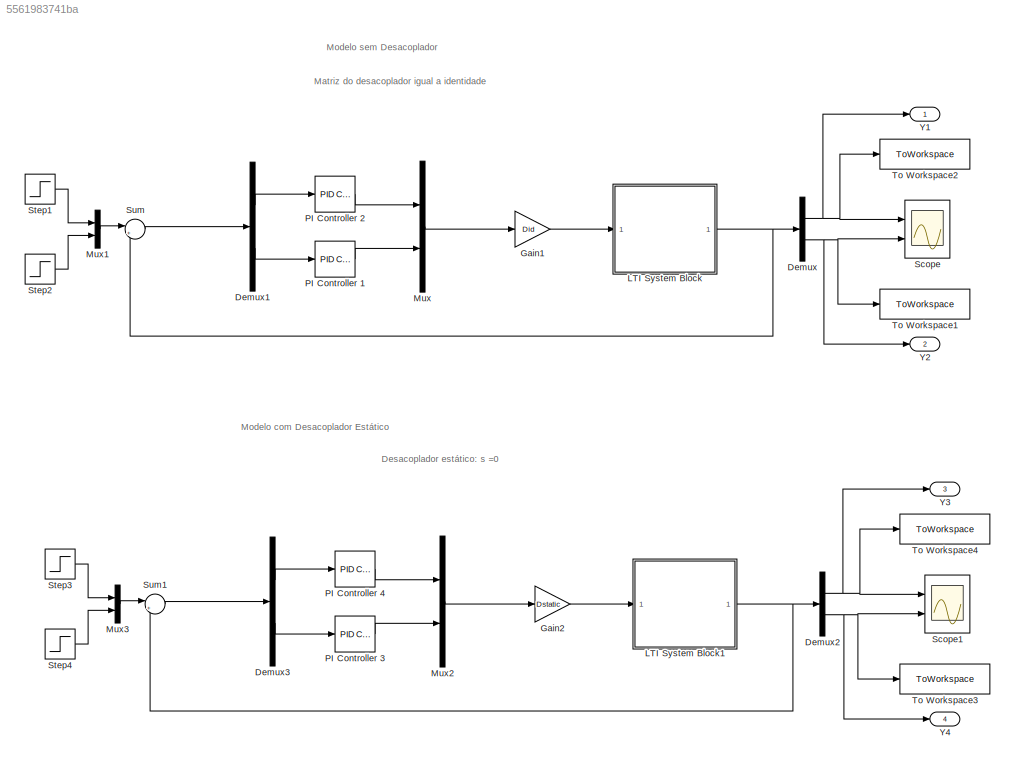
MODEL slx_5561983741ba
KIND model
CONFIG AbsTol = auto
CONFIG EnableMultiTasking = off
CONFIG FixedStep = auto
CONFIG MaxStep = auto
CONFIG MinStep = auto
CONFIG RelTol = 1e-3
CONFIG SampleTimeConstraint = Unconstrained
CONFIG SolverName = ode45
CONFIG StartTime = 0.0
CONFIG StopTime = 10000
WORKSPACE source: mxarray member
WORKSPACE Gm: object (value not decoded)
BLOCK [Demux] Demux
  Outputs = 2
  Ports = [1, 2]
BLOCK [Demux] Demux1
  Outputs = 2
  Ports = [1, 2]
BLOCK [Demux] Demux2
  Outputs = 2
  Ports = [1, 2]
BLOCK [Demux] Demux3
  Outputs = 2
  Ports = [1, 2]
BLOCK [Gain] Gain1
  Gain = Did
  Multiplication = Matrix(K*u)
BLOCK [Gain] Gain2
  Gain = Dstatic
  Multiplication = Matrix(K*u)
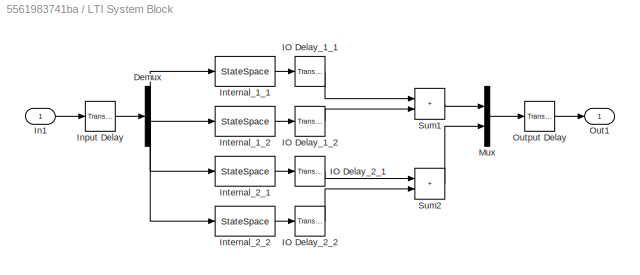
BLOCK [SubSystem] LTI System Block
  AncestorBlock = cstblocks/LTI System
  BlockChoice = CSS
  Ports = [1, 1]
  RequestExecContextInheritance = off
BLOCK [Demux] LTI System Block/Demux
  Outputs = 2
  Ports = [1, 2]
BLOCK [Reference] LTI System Block/IO Delay_1_1  REF=cstextras/Transport Delay  (lib defined in mdl_a5737024c95e)
(masked)
  Ports = [1, 1]
  SourceBlock = cstextras/Transport Delay\n(masked)
  SourceProductBaseCode = CT
  SourceType = Transport Delay (masked)
BLOCK [Reference] LTI System Block/IO Delay_1_2  REF=cstextras/Transport Delay  (lib defined in mdl_a5737024c95e)
(masked)
  Ports = [1, 1]
  SourceBlock = cstextras/Transport Delay\n(masked)
  SourceProductBaseCode = CT
  SourceType = Transport Delay (masked)
BLOCK [Reference] LTI System Block/IO Delay_2_1  REF=cstextras/Transport Delay  (lib defined in mdl_a5737024c95e)
(masked)
  Ports = [1, 1]
  SourceBlock = cstextras/Transport Delay\n(masked)
  SourceProductBaseCode = CT
  SourceType = Transport Delay (masked)
BLOCK [Reference] LTI System Block/IO Delay_2_2  REF=cstextras/Transport Delay  (lib defined in mdl_a5737024c95e)
(masked)
  Ports = [1, 1]
  SourceBlock = cstextras/Transport Delay\n(masked)
  SourceProductBaseCode = CT
  SourceType = Transport Delay (masked)
BLOCK [Inport] LTI System Block/In1
BLOCK [Reference] LTI System Block/Input Delay  REF=cstextras/Transport Delay  (lib defined in mdl_a5737024c95e)
(masked)
  Ports = [1, 1]
  SourceBlock = cstextras/Transport Delay\n(masked)
  SourceProductBaseCode = CT
  SourceType = Transport Delay (masked)
BLOCK [StateSpace] LTI System Block/Internal_1_1
  A = D(1,1).a
  B = D(1,1).b
  C = D(1,1).c
  D = D(1,1).d
  Ports = [1, 1]
BLOCK [StateSpace] LTI System Block/Internal_1_2
  A = D(1,2).a
  B = D(1,2).b
  C = D(1,2).c
  D = D(1,2).d
  Ports = [1, 1]
BLOCK [StateSpace] LTI System Block/Internal_2_1
  A = D(2,1).a
  B = D(2,1).b
  C = D(2,1).c
  D = D(2,1).d
  Ports = [1, 1]
BLOCK [StateSpace] LTI System Block/Internal_2_2
  A = D(2,2).a
  B = D(2,2).b
  C = D(2,2).c
  D = D(2,2).d
  Ports = [1, 1]
BLOCK [Mux] LTI System Block/Mux
  Inputs = 2
  Ports = [2, 1]
BLOCK [Outport] LTI System Block/Out1
  InitialOutput = 0
  VectorParamsAs1DForOutWhenUnconnected = off
BLOCK [Reference] LTI System Block/Output Delay  REF=cstextras/Transport Delay  (lib defined in mdl_a5737024c95e)
(masked)
  Ports = [1, 1]
  SourceBlock = cstextras/Transport Delay\n(masked)
  SourceProductBaseCode = CT
  SourceType = Transport Delay (masked)
BLOCK [Sum] LTI System Block/Sum1
  IconShape = rectangular
  Ports = [2, 1]
BLOCK [Sum] LTI System Block/Sum2
  IconShape = rectangular
  Ports = [2, 1]
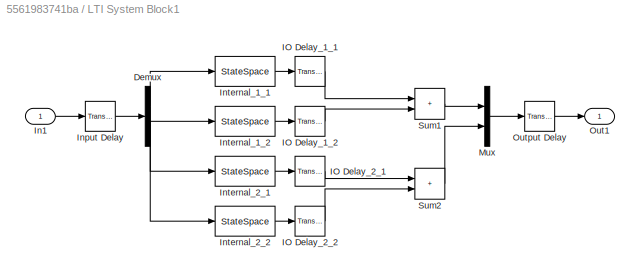
BLOCK [SubSystem] LTI System Block1
  AncestorBlock = cstblocks/LTI System
  BlockChoice = CSS
  Ports = [1, 1]
  RequestExecContextInheritance = off
BLOCK [Demux] LTI System Block1/Demux
  Outputs = 2
  Ports = [1, 2]
BLOCK [Reference] LTI System Block1/IO Delay_1_1  REF=cstextras/Transport Delay  (lib defined in mdl_a5737024c95e)
(masked)
  Ports = [1, 1]
  SourceBlock = cstextras/Transport Delay\n(masked)
  SourceProductBaseCode = CT
  SourceType = Transport Delay (masked)
BLOCK [Reference] LTI System Block1/IO Delay_1_2  REF=cstextras/Transport Delay  (lib defined in mdl_a5737024c95e)
(masked)
  Ports = [1, 1]
  SourceBlock = cstextras/Transport Delay\n(masked)
  SourceProductBaseCode = CT
  SourceType = Transport Delay (masked)
BLOCK [Reference] LTI System Block1/IO Delay_2_1  REF=cstextras/Transport Delay  (lib defined in mdl_a5737024c95e)
(masked)
  Ports = [1, 1]
  SourceBlock = cstextras/Transport Delay\n(masked)
  SourceProductBaseCode = CT
  SourceType = Transport Delay (masked)
BLOCK [Reference] LTI System Block1/IO Delay_2_2  REF=cstextras/Transport Delay  (lib defined in mdl_a5737024c95e)
(masked)
  Ports = [1, 1]
  SourceBlock = cstextras/Transport Delay\n(masked)
  SourceProductBaseCode = CT
  SourceType = Transport Delay (masked)
BLOCK [Inport] LTI System Block1/In1
BLOCK [Reference] LTI System Block1/Input Delay  REF=cstextras/Transport Delay  (lib defined in mdl_a5737024c95e)
(masked)
  Ports = [1, 1]
  SourceBlock = cstextras/Transport Delay\n(masked)
  SourceProductBaseCode = CT
  SourceType = Transport Delay (masked)
BLOCK [StateSpace] LTI System Block1/Internal_1_1
  A = D(1,1).a
  B = D(1,1).b
  C = D(1,1).c
  D = D(1,1).d
  Ports = [1, 1]
BLOCK [StateSpace] LTI System Block1/Internal_1_2
  A = D(1,2).a
  B = D(1,2).b
  C = D(1,2).c
  D = D(1,2).d
  Ports = [1, 1]
BLOCK [StateSpace] LTI System Block1/Internal_2_1
  A = D(2,1).a
  B = D(2,1).b
  C = D(2,1).c
  D = D(2,1).d
  Ports = [1, 1]
BLOCK [StateSpace] LTI System Block1/Internal_2_2
  A = D(2,2).a
  B = D(2,2).b
  C = D(2,2).c
  D = D(2,2).d
  Ports = [1, 1]
BLOCK [Mux] LTI System Block1/Mux
  Inputs = 2
  Ports = [2, 1]
BLOCK [Outport] LTI System Block1/Out1
  InitialOutput = 0
  VectorParamsAs1DForOutWhenUnconnected = off
BLOCK [Reference] LTI System Block1/Output Delay  REF=cstextras/Transport Delay  (lib defined in mdl_a5737024c95e)
(masked)
  Ports = [1, 1]
  SourceBlock = cstextras/Transport Delay\n(masked)
  SourceProductBaseCode = CT
  SourceType = Transport Delay (masked)
BLOCK [Sum] LTI System Block1/Sum1
  IconShape = rectangular
  Ports = [2, 1]
BLOCK [Sum] LTI System Block1/Sum2
  IconShape = rectangular
  Ports = [2, 1]
BLOCK [Mux] Mux
  DisplayOption = bar
  Inputs = 2
  Ports = [2, 1]
BLOCK [Mux] Mux1
  DisplayOption = bar
  Inputs = 2
  Ports = [2, 1]
BLOCK [Mux] Mux2
  DisplayOption = bar
  Inputs = 2
  Ports = [2, 1]
BLOCK [Mux] Mux3
  DisplayOption = bar
  Inputs = 2
  Ports = [2, 1]
BLOCK [Reference] PI Controller 1  REF=pid_lib/PID Controller
  Ports = [1, 1]
  SourceBlock = pid_lib/PID Controller
  SourceProductBaseCode = SL
  SourceType = PID 1dof
BLOCK [Reference] PI Controller 2  REF=pid_lib/PID Controller
  Ports = [1, 1]
  SourceBlock = pid_lib/PID Controller
  SourceProductBaseCode = SL
  SourceType = PID 1dof
BLOCK [Reference] PI Controller 3  REF=pid_lib/PID Controller
  Ports = [1, 1]
  SourceBlock = pid_lib/PID Controller
  SourceProductBaseCode = SL
  SourceType = PID 1dof
BLOCK [Reference] PI Controller 4  REF=pid_lib/PID Controller
  Ports = [1, 1]
  SourceBlock = pid_lib/PID Controller
  SourceProductBaseCode = SL
  SourceType = PID 1dof
BLOCK [Scope] Scope
  Floating = off
  NumInputPorts = 2
  Ports = [2]
  ScopeSpecificationString = Simulink.scopes.TimeScopeBlockCfg('CurrentConfiguration', extmgr.ConfigurationSet(extmgr.Configuration('Core','General UI',true),extmgr.Configuration('Core','Source UI',true),extmgr.Configuration('Sources','WiredSimulink',true),extmgr.Configuration('Visuals','Time Domain',true,'SerializedDisplays',{struct('MinYLimReal','-6571794.80714','MaxYLimReal','730199.42302','YLabelReal','','MinYLimMag','   ...<+1951ch>
BLOCK [Scope] Scope1
  Floating = off
  NumInputPorts = 2
  Ports = [2]
  ScopeSpecificationString = Simulink.scopes.TimeScopeBlockCfg('CurrentConfiguration', extmgr.ConfigurationSet(extmgr.Configuration('Core','General UI',true),extmgr.Configuration('Core','Source UI',true),extmgr.Configuration('Sources','WiredSimulink',true,'DataLoggingVariableName','ScopeData1'),extmgr.Configuration('Visuals','Time Domain',true,'SerializedDisplays',{struct('MinYLimReal','-6571794.80714','MaxYLimReal','730199.4...<+1990ch>
BLOCK [Step] Step1
  SampleTime = 0
BLOCK [Step] Step2
  SampleTime = 0
BLOCK [Step] Step3
  SampleTime = 0
BLOCK [Step] Step4
  SampleTime = 0
BLOCK [Sum] Sum
  Inputs = |+-
  Ports = [2, 1]
BLOCK [Sum] Sum1
  Inputs = |+-
  Ports = [2, 1]
BLOCK [ToWorkspace] To Workspace1
  FixptAsFi = on
  MaxDataPoints = inf
  Ports = [1]
  SampleTime = -1
  SaveFormat = Timeseries
  VariableName = Y2
BLOCK [ToWorkspace] To Workspace2
  FixptAsFi = on
  MaxDataPoints = inf
  Ports = [1]
  SampleTime = -1
  SaveFormat = Timeseries
  VariableName = Y1
BLOCK [ToWorkspace] To Workspace3
  FixptAsFi = on
  MaxDataPoints = inf
  Ports = [1]
  SampleTime = -1
  SaveFormat = Timeseries
  VariableName = Y
BLOCK [ToWorkspace] To Workspace4
  FixptAsFi = on
  MaxDataPoints = inf
  Ports = [1]
  SampleTime = -1
  SaveFormat = Timeseries
  VariableName = Y3
BLOCK [Outport] Y1
BLOCK [Outport] Y2
  Port = 2
BLOCK [Outport] Y3
  Port = 3
BLOCK [Outport] Y4
  Port = 4
ANNOTATION (root): Modelo com Desacoplador Estático
ANNOTATION (root): Modelo sem Desacoplador
ANNOTATION (root): Desacoplador estático: s =0
ANNOTATION (root): Matriz do desacoplador igual a identidade
LINE Demux1:1 -> PI Controller 2:1
LINE Demux1:2 -> PI Controller 1:1
NET Demux2:1 -> Scope1:1, To Workspace4:1, Y3:1
NET Demux2:2 -> Scope1:2, To Workspace3:1, Y4:1
LINE Demux3:1 -> PI Controller 4:1
LINE Demux3:2 -> PI Controller 3:1
NET Demux:1 -> Scope:1, To Workspace2:1, Y1:1
NET Demux:2 -> Scope:2, To Workspace1:1, Y2:1
LINE Gain1:1 -> LTI System Block:1
LINE Gain2:1 -> LTI System Block1:1
NET LTI System Block1:1 -> Demux2:1, Sum1:2
NET LTI System Block:1 -> Demux:1, Sum:2
LINE Mux1:1 -> Sum:1
LINE Mux2:1 -> Gain2:1
LINE Mux3:1 -> Sum1:1
LINE Mux:1 -> Gain1:1
LINE PI Controller 1:1 -> Mux:2
LINE PI Controller 2:1 -> Mux:1
LINE PI Controller 3:1 -> Mux2:2
LINE PI Controller 4:1 -> Mux2:1
LINE Step1:1 -> Mux1:1
LINE Step2:1 -> Mux1:2
LINE Step3:1 -> Mux3:1
LINE Step4:1 -> Mux3:2
LINE Sum1:1 -> Demux3:1
LINE Sum:1 -> Demux1:1
note: NET lines group one-source signal fan-out (src -> all destinations, sorted); 1:1 wires keep LINE
